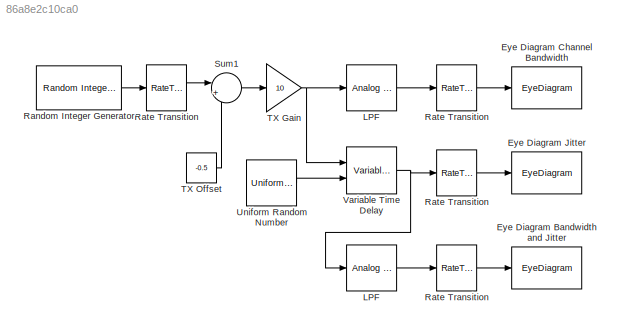
MODEL slx_86a8e2c10ca0
KIND model
BLOCK [EyeDiagram] Eye Diagram Bandwidth and Jitter
  Ports = [1]
  ScopeSpecificationString = comm.scopes.EyeDiagramBlockCfg('CurrentConfiguration', extmgr.ConfigurationSet(extmgr.Configuration('Core','General UI',true,'FigureColor',[0.313725490196078 0.313725490196078 0.313725490196078]),extmgr.Configuration('Core','Source UI',true),extmgr.Configuration('Sources','WiredSimulink',true),extmgr.Configuration('Sources','Simulink',false),extmgr.Configuration('Sources','File',false),extmgr.Conf...<+1330ch>
  Tag = EyeDiagram
BLOCK [EyeDiagram] Eye Diagram Channel Bandwidth
  Ports = [1]
  ScopeSpecificationString = comm.scopes.EyeDiagramBlockCfg('CurrentConfiguration', extmgr.ConfigurationSet(extmgr.Configuration('Core','General UI',true,'FigureColor',[0.247058823529412 0.247058823529412 0.247058823529412]),extmgr.Configuration('Core','Source UI',true),extmgr.Configuration('Sources','WiredSimulink',true),extmgr.Configuration('Sources','Simulink',false),extmgr.Configuration('Sources','File',false),extmgr.Conf...<+1330ch>
  Tag = EyeDiagram
BLOCK [EyeDiagram] Eye Diagram Jitter
  Ports = [1]
  ScopeSpecificationString = comm.scopes.EyeDiagramBlockCfg('CurrentConfiguration', extmgr.ConfigurationSet(extmgr.Configuration('Core','General UI',true,'FigureColor',[0.313725490196078 0.313725490196078 0.313725490196078]),extmgr.Configuration('Core','Source UI',true),extmgr.Configuration('Sources','WiredSimulink',true),extmgr.Configuration('Sources','Simulink',false),extmgr.Configuration('Sources','File',false),extmgr.Conf...<+1329ch>
  Tag = EyeDiagram
BLOCK [Reference] LPF  REF=dsparch4/Analog
Filter Design
  N = 9
  Ports = [1, 1]
  Rp = 0.1
  Rs = 40
  SourceBlock = dsparch4/Analog\nFilter Design
  SourceType = Analog Filter Design
  Whi = 80
  Wlo = 2*pi*1200
  filttype = Lowpass
  method = Chebyshev I
BLOCK [Reference] LPF   REF=dsparch4/Analog
Filter Design
  N = 9
  Ports = [1, 1]
  Rp = 0.1
  Rs = 40
  SourceBlock = dsparch4/Analog\nFilter Design
  SourceType = Analog Filter Design
  Whi = 80
  Wlo = 2*pi*1200
  filttype = Lowpass
  method = Chebyshev I
BLOCK [Reference] Random Integer Generator  REF=commrandsrc2/Random Integer
Generator
  Ports = [0, 1]
  SourceBlock = commrandsrc2/Random Integer\nGenerator
  SourceType = Random Integer Generator
  Ts = 1e-3
  frameBased = off
  mul = 2
  orient = on
  outDataType = double
  sampPerFrame = 50
  seed = randseed
BLOCK [RateTransition] Rate Transition
  OutPortSampleTime = 2e-5
BLOCK [RateTransition] Rate Transition 
  OutPortSampleTime = 2e-5
BLOCK [Sum] Sum1
  IconShape = round
  InputSameDT = off
  Inputs = |++
  OutDataTypeStr = Inherit: Inherit via internal rule
  Ports = [2, 1]
  SaturateOnIntegerOverflow = off
BLOCK [Gain] TX Gain
  Gain = 10
  OutDataTypeStr = Inherit: Inherit via internal rule
  ParamDataTypeStr = Inherit: Inherit via internal rule
  SaturateOnIntegerOverflow = off
BLOCK [Constant] TX Offset
  Value = -0.5
BLOCK [UniformRandomNumber] Uniform Random Number
  Maximum = 0.0005
  Minimum = 0.00002
  SampleTime = 0
BLOCK [VariableTransportDelay] Variable Time Delay
  MaximumDelay = .0025
  Ports = [2, 1]
  TransDelayFeedthrough = on
  ZeroDelay = on
LINE LPF :1 -> Rate Transition :1
LINE LPF:1 -> Rate Transition :1
LINE Random Integer Generator:1 -> Rate Transition:1
NET Rate Transition :1 -> Eye Diagram Bandwidth and Jitter:1, Eye Diagram Channel Bandwidth:1, Eye Diagram Jitter:1
LINE Rate Transition:1 -> Sum1:1
LINE Sum1:1 -> TX Gain:1
NET TX Gain:1 -> LPF:1, Variable Time Delay:1
LINE TX Offset:1 -> Sum1:2
LINE Uniform Random Number:1 -> Variable Time Delay:2
NET Variable Time Delay:1 -> LPF :1, Rate Transition :1
note: NET lines group one-source signal fan-out (src -> all destinations, sorted); 1:1 wires keep LINE
